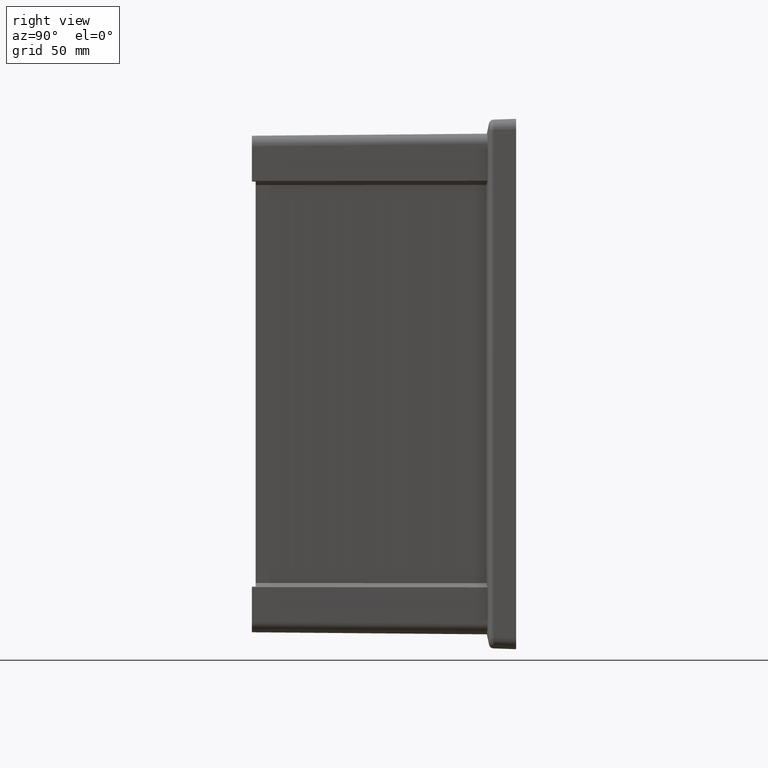
[diagram: clean part render]
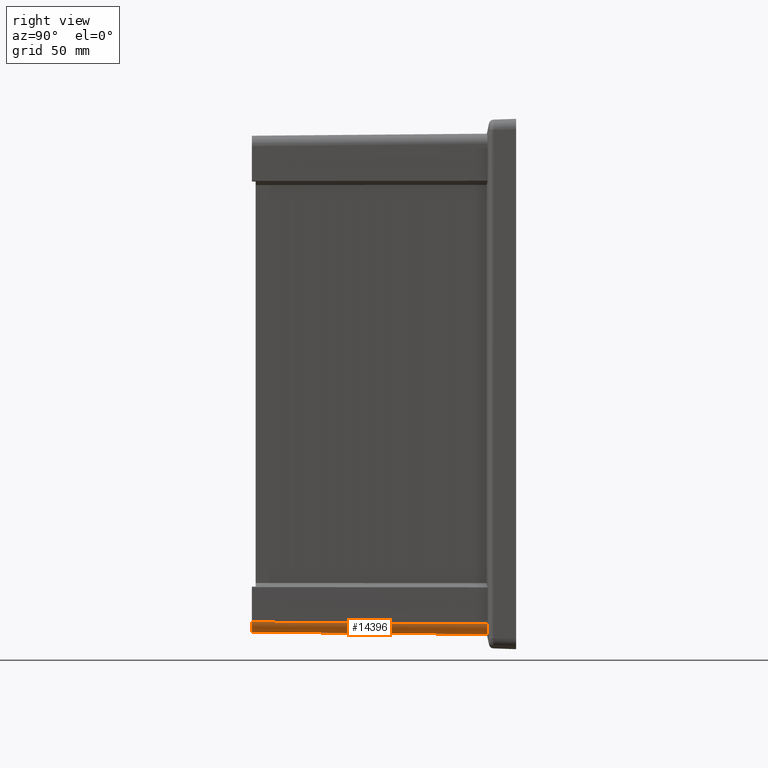
[diagram: same view with one face highlighted and labeled with its STEP entity id]
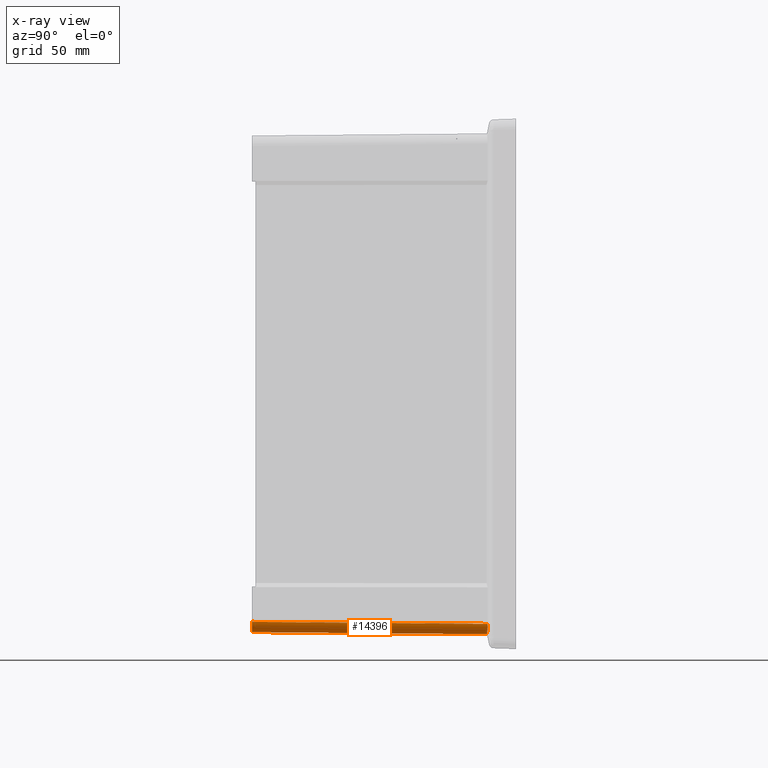
[diagram: x-ray of the same camera — body ghosted, the highlighted face saturated]
A machine part, right view. The second image highlights one B-rep face of the part: STEP entity #14396.
The next image is the same camera in x-ray: the body ghosted, the highlighted face saturated — about 0% of this face is hidden behind the body in this view.
In plain terms, the highlighted cylindrical surface (edge-blend (fillet) strip) has radius 5.5 mm, axis along (0.0087, 0.9999, -0.0087).
Its self-contained STEP definition (entity closure, byte-faithful):
#3558=CARTESIAN_POINT('',(1.015073698854E2,-1.405E2,-1.320071604515E2));
#3559=CARTESIAN_POINT('',(1.024240016446E2,-1.405E2,-1.320071604497E2));
#3560=CARTESIAN_POINT('',(1.038594064088E2,-1.405E2,-1.316093016919E2));
#3561=CARTESIAN_POINT('',(1.054773247122E2,-1.405E2,-1.304773247122E2));
#3562=CARTESIAN_POINT('',(1.066093016919E2,-1.405E2,-1.288594064088E2));
#3563=CARTESIAN_POINT('',(1.070071604497E2,-1.405E2,-1.274240016446E2));
#3564=CARTESIAN_POINT('',(1.070071604515E2,-1.405E2,-1.265073698854E2));
#3623=DIRECTION('',(8.726203236472E-3,9.999238504760E-1,-8.726203429091E-3));
#3624=VECTOR('',#3623,1.253596075292E2);
#3625=CARTESIAN_POINT('',(1.070071604519E2,-1.404999999895E2,
-1.265073698774E2));
#3626=LINE('',#3625,#3624);
#3646=CARTESIAN_POINT('',(1.081010738649E2,-1.514993853475E1,
-1.276012833145E2));
#3647=CARTESIAN_POINT('',(1.081010738649E2,-1.514993853474E1,
-1.277957366328E2));
#3648=CARTESIAN_POINT('',(1.080805879966E2,-1.515429291198E1,
-1.281821131819E2));
#3649=CARTESIAN_POINT('',(1.079882201299E2,-1.517392631878E1,
-1.287583737385E2));
#3650=CARTESIAN_POINT('',(1.078869099201E2,-1.519546046877E1,
-1.291317720865E2));
#3651=CARTESIAN_POINT('',(1.078261217597E2,-1.520838139114E1,
-1.293164619326E2));
#4570=CARTESIAN_POINT('',(1.025979121171E2,-1.553623605655E1,
-1.330977027018E2));
#4571=CARTESIAN_POINT('',(1.028913092061E2,-1.552471461101E1,
-1.330978032480E2));
#4572=CARTESIAN_POINT('',(1.034857593815E2,-1.550457453955E1,
-1.330487551809E2));
#4573=CARTESIAN_POINT('',(1.043244101135E2,-1.547858964845E1,
-1.328465865422E2));
#4574=CARTESIAN_POINT('',(1.052454980008E2,-1.544612499611E1,
-1.324598188774E2));
#4575=CARTESIAN_POINT('',(1.061958466818E2,-1.539795617027E1,
-1.318167087751E2));
#4576=CARTESIAN_POINT('',(1.069999405137E2,-1.533199396987E1,
-1.309583819039E2));
#4577=CARTESIAN_POINT('',(1.075160693239E2,-1.526693719951E1,
-1.301225268867E2));
#4578=CARTESIAN_POINT('',(1.077406208927E2,-1.522655516143E1,
-1.295762352480E2));
#4579=CARTESIAN_POINT('',(1.078261217597E2,-1.520838139114E1,
-1.293164619326E2));
#4597=DIRECTION('',(-8.726203199730E-3,-9.999238504777E-1,8.726203270744E-3));
#4598=VECTOR('',#4597,1.249732805886E2);
#4599=CARTESIAN_POINT('',(1.025979121171E2,-1.553623605655E1,
-1.330977027018E2));
#4600=LINE('',#4599,#4598);
#5945=CARTESIAN_POINT('',(1.070071604519E2,-1.404999999895E2,
-1.265073698774E2));
#5946=VERTEX_POINT('',#5945);
#5947=VERTEX_POINT('',#3558);
#6509=CARTESIAN_POINT('',(1.078261217597E2,-1.520838139114E1,
-1.293164619326E2));
#6510=VERTEX_POINT('',#6509);
#6511=VERTEX_POINT('',#3646);
#6532=CARTESIAN_POINT('',(1.025979121171E2,-1.553623605655E1,
-1.330977027018E2));
#6533=VERTEX_POINT('',#6532);
#14383=CARTESIAN_POINT('',(1.015008063447E2,-1.412041100882E2,
-1.265008063447E2));
#14384=DIRECTION('',(8.726203243996E-3,9.999238504776E-1,-8.726203243996E-3));
#14385=DIRECTION('',(3.633713102935E-11,8.726535498109E-3,9.999619230642E-1));
#14386=AXIS2_PLACEMENT_3D('',#14383,#14384,#14385);
#14387=CYLINDRICAL_SURFACE('',#14386,5.500000000076E0);
#14388=ORIENTED_EDGE('',*,*,#12817,.T.);
#14389=ORIENTED_EDGE('',*,*,#12877,.T.);
#14390=ORIENTED_EDGE('',*,*,#12912,.T.);
#14391=ORIENTED_EDGE('',*,*,#12496,.F.);
#14393=ORIENTED_EDGE('',*,*,#14392,.T.);
#14394=EDGE_LOOP('',(#14388,#14389,#14390,#14391,#14393));
#14395=FACE_OUTER_BOUND('',#14394,.F.);
#14396=ADVANCED_FACE('',(#14395),#14387,.T.);
#3565=B_SPLINE_CURVE_WITH_KNOTS('',3,(#3558,#3559,#3560,#3561,#3562,#3563,
#3564),.UNSPECIFIED.,.F.,.F.,(4,1,1,1,4),(0.E0,2.5E-1,5.E-1,7.5E-1,1.E0),
.UNSPECIFIED.);
#3652=B_SPLINE_CURVE_WITH_KNOTS('',3,(#3646,#3647,#3648,#3649,#3650,#3651),
.UNSPECIFIED.,.F.,.F.,(4,1,1,4),(0.E0,3.333333333333E-1,6.666666666667E-1,1.E0),
.UNSPECIFIED.);
#4580=B_SPLINE_CURVE_WITH_KNOTS('',3,(#4570,#4571,#4572,#4573,#4574,#4575,#4576,
#4577,#4578,#4579),.UNSPECIFIED.,.F.,.F.,(4,1,1,1,1,1,1,4),(0.E0,
1.428571428571E-1,2.857142857143E-1,4.285714285714E-1,5.714285714286E-1,
7.142857142857E-1,8.571428571429E-1,1.E0),.UNSPECIFIED.);
#12496=EDGE_CURVE('',#6533,#6510,#4580,.T.);
#12817=EDGE_CURVE('',#5947,#5946,#3565,.T.);
#12877=EDGE_CURVE('',#5946,#6511,#3626,.T.);
#12912=EDGE_CURVE('',#6511,#6510,#3652,.T.);
#14392=EDGE_CURVE('',#6533,#5947,#4600,.T.);